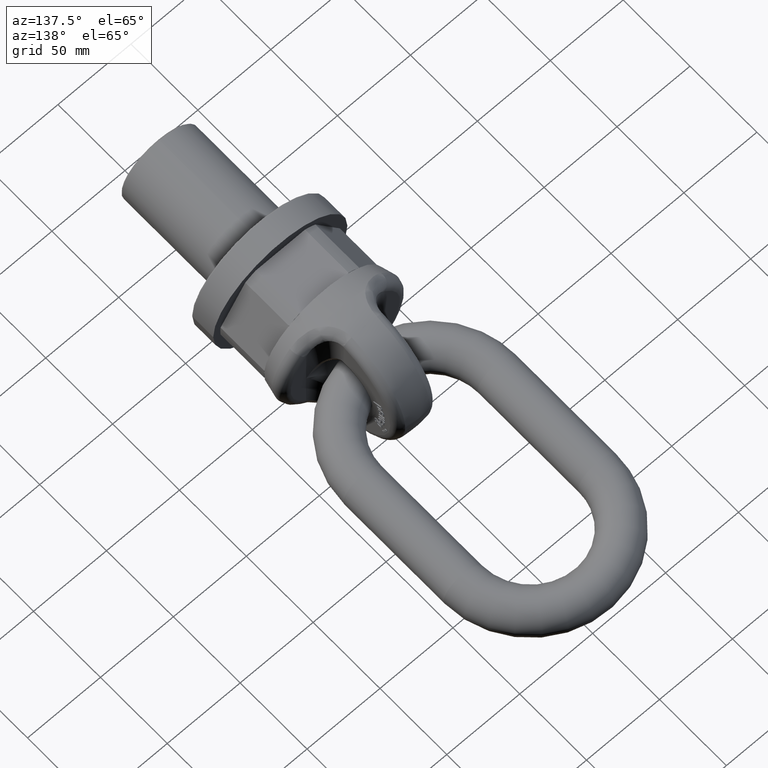
[diagram: clean part render]
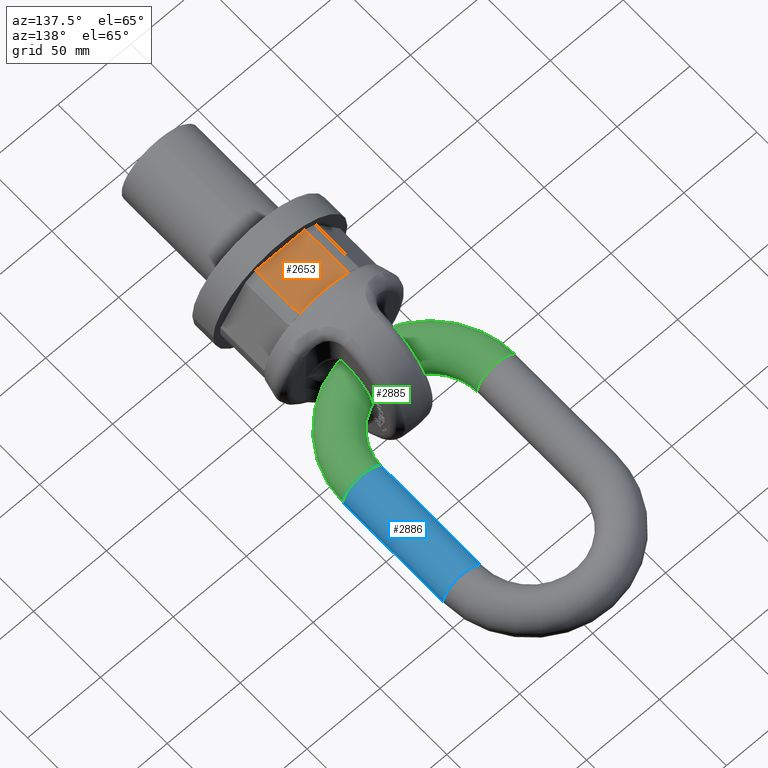
[diagram: same view with three faces highlighted in distinct colors, each labeled with its STEP entity id]
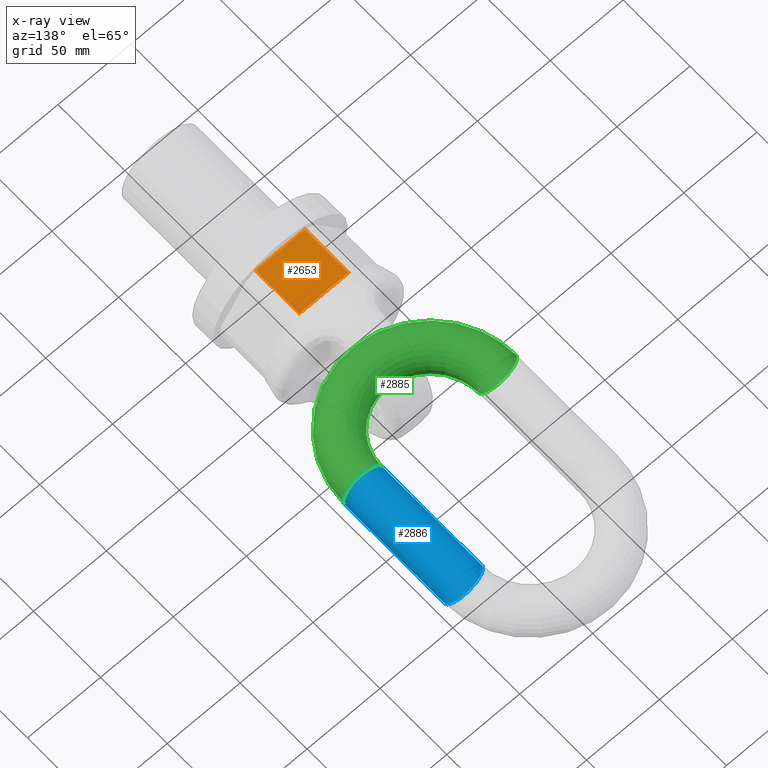
[diagram: x-ray of the same camera — body ghosted, the three highlighted faces saturated]
A machine part, auxiliary view with three faces highlighted in distinct colors.
The next image is the same camera in x-ray (body ghosted, the three faces saturated) — at least one of them is partly hidden behind the body in this view.
Their STEP definitions:

[orange] entity #2653 — the highlighted planar face has unit normal (0, 0, 1).
#1811=FACE_OUTER_BOUND('',#3076,.T.);
#2042=LINE('',#6582,#2298);
#2062=LINE('',#6635,#2318);
#2063=LINE('',#6637,#2319);
#2064=LINE('',#6639,#2320);
#2298=VECTOR('',#5822,1.);
#2318=VECTOR('',#5868,1.);
#2319=VECTOR('',#5869,1.);
#2320=VECTOR('',#5870,1.);
#2653=ADVANCED_FACE('',(#1811),#2895,.T.);
#2895=PLANE('',#5622);
#3076=EDGE_LOOP('',(#3388,#3389,#3390,#3391));
#3388=ORIENTED_EDGE('',*,*,#4972,.F.);
#3389=ORIENTED_EDGE('',*,*,#4946,.T.);
#3390=ORIENTED_EDGE('',*,*,#4973,.F.);
#3391=ORIENTED_EDGE('',*,*,#4974,.T.);
#4548=VERTEX_POINT('',#6581);
#4549=VERTEX_POINT('',#6583);
#4569=VERTEX_POINT('',#6636);
#4570=VERTEX_POINT('',#6638);
#4946=EDGE_CURVE('',#4549,#4548,#2042,.T.);
#4972=EDGE_CURVE('',#4549,#4569,#2062,.T.);
#4973=EDGE_CURVE('',#4570,#4548,#2063,.T.);
#4974=EDGE_CURVE('',#4570,#4569,#2064,.T.);
#5622=AXIS2_PLACEMENT_3D('',#6640,#5871,#5872);
#5822=DIRECTION('',(1.,4.81111242522174E-17,0.));
#5868=DIRECTION('',(-2.4492935982947E-17,1.,0.));
#5869=DIRECTION('',(2.4492935982947E-17,-1.,0.));
#5870=DIRECTION('',(-1.,0.,0.));
#5871=DIRECTION('',(0.,0.,1.));
#5872=DIRECTION('',(1.,0.,0.));
#6581=CARTESIAN_POINT('',(16.9096865730858,16.3333333333333,37.5));
#6582=CARTESIAN_POINT('',(46.,16.3333333333333,37.5));
#6583=CARTESIAN_POINT('',(-16.9096865730858,16.3333333333333,37.5));
#6635=CARTESIAN_POINT('',(-16.9096865730858,-4.14167870726291E-16,37.5));
#6636=CARTESIAN_POINT('',(-16.9096865730858,49.,37.5));
#6637=CARTESIAN_POINT('',(16.9096865730858,4.14167870726291E-16,37.5));
#6638=CARTESIAN_POINT('',(16.9096865730858,49.,37.5));
#6639=CARTESIAN_POINT('',(21.650635094611,49.,37.5));
#6640=CARTESIAN_POINT('',(21.650635094611,49.,37.5));

[blue] entity #2886 — the highlighted cylindrical surface (bore or boss wall) has radius 13.5 mm, axis along (0, 1, 0).
#2040=CYLINDRICAL_SURFACE('',#5807,13.5);
#2886=ADVANCED_FACE('',(#3061,#3062),#2040,.T.);
#3061=FACE_BOUND('',#3347,.T.);
#3062=FACE_BOUND('',#3348,.T.);
#3347=EDGE_LOOP('',(#4539));
#3348=EDGE_LOOP('',(#4540));
#4539=ORIENTED_EDGE('',*,*,#5535,.F.);
#4540=ORIENTED_EDGE('',*,*,#5536,.T.);
#4939=VERTEX_POINT('',#9755);
#4940=VERTEX_POINT('',#9758);
#5535=EDGE_CURVE('',#4939,#4939,#5601,.T.);
#5536=EDGE_CURVE('',#4940,#4940,#5602,.T.);
#5601=CIRCLE('',#5804,13.5);
#5602=CIRCLE('',#5806,13.5);
#5804=AXIS2_PLACEMENT_3D('',#9754,#6559,#6560);
#5806=AXIS2_PLACEMENT_3D('',#9757,#6563,#6564);
#5807=AXIS2_PLACEMENT_3D('',#9759,#6565,#6566);
#6559=DIRECTION('',(0.,-1.,0.));
#6560=DIRECTION('',(0.,0.,-1.));
#6563=DIRECTION('',(0.,-1.,0.));
#6564=DIRECTION('',(0.,0.,-1.));
#6565=DIRECTION('',(0.,1.,0.));
#6566=DIRECTION('',(0.,0.,1.));
#9754=CARTESIAN_POINT('',(46.,128.5,0.));
#9755=CARTESIAN_POINT('',(46.,128.5,-13.5));
#9757=CARTESIAN_POINT('',(46.,203.5,0.));
#9758=CARTESIAN_POINT('',(46.,203.5,-13.5));
#9759=CARTESIAN_POINT('',(46.,128.5,0.));

[green] entity #2885 — the highlighted toroidal blend (fillet) surface has major radius 46 mm and minor (blend) radius 13.5 mm.
#1804=TOROIDAL_SURFACE('',#5805,46.,13.5);
#2885=ADVANCED_FACE('',(#3059,#3060),#1804,.T.);
#3059=FACE_BOUND('',#3345,.T.);
#3060=FACE_BOUND('',#3346,.T.);
#3345=EDGE_LOOP('',(#4537));
#3346=EDGE_LOOP('',(#4538));
#4537=ORIENTED_EDGE('',*,*,#5535,.T.);
#4538=ORIENTED_EDGE('',*,*,#5533,.F.);
#4937=VERTEX_POINT('',#9750);
#4939=VERTEX_POINT('',#9755);
#5533=EDGE_CURVE('',#4937,#4937,#5599,.T.);
#5535=EDGE_CURVE('',#4939,#4939,#5601,.T.);
#5599=CIRCLE('',#5801,13.5);
#5601=CIRCLE('',#5804,13.5);
#5801=AXIS2_PLACEMENT_3D('',#9749,#6553,#6554);
#5804=AXIS2_PLACEMENT_3D('',#9754,#6559,#6560);
#5805=AXIS2_PLACEMENT_3D('',#9756,#6561,#6562);
#6553=DIRECTION('',(-1.01064309961486E-15,1.,0.));
#6554=DIRECTION('',(0.,0.,-1.));
#6559=DIRECTION('',(0.,-1.,0.));
#6560=DIRECTION('',(0.,0.,-1.));
#6561=DIRECTION('',(0.,0.,-1.));
#6562=DIRECTION('',(-1.,0.,0.));
#9749=CARTESIAN_POINT('',(-46.,128.5,0.));
#9750=CARTESIAN_POINT('',(-46.,128.5,-13.5));
#9754=CARTESIAN_POINT('',(46.,128.5,0.));
#9755=CARTESIAN_POINT('',(46.,128.5,-13.5));
#9756=CARTESIAN_POINT('',(3.46944695195361E-14,128.5,0.));